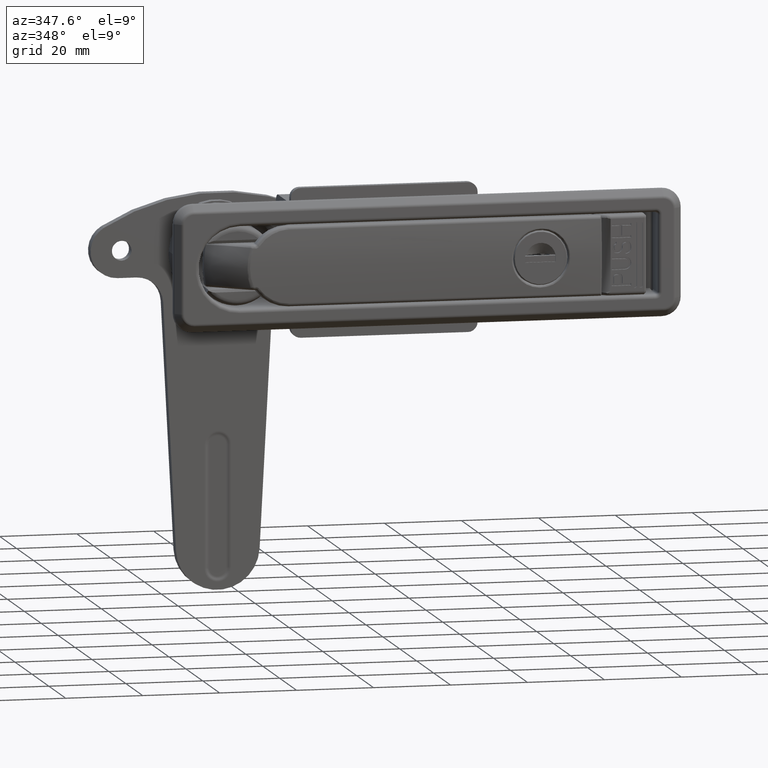
[diagram: clean part render]
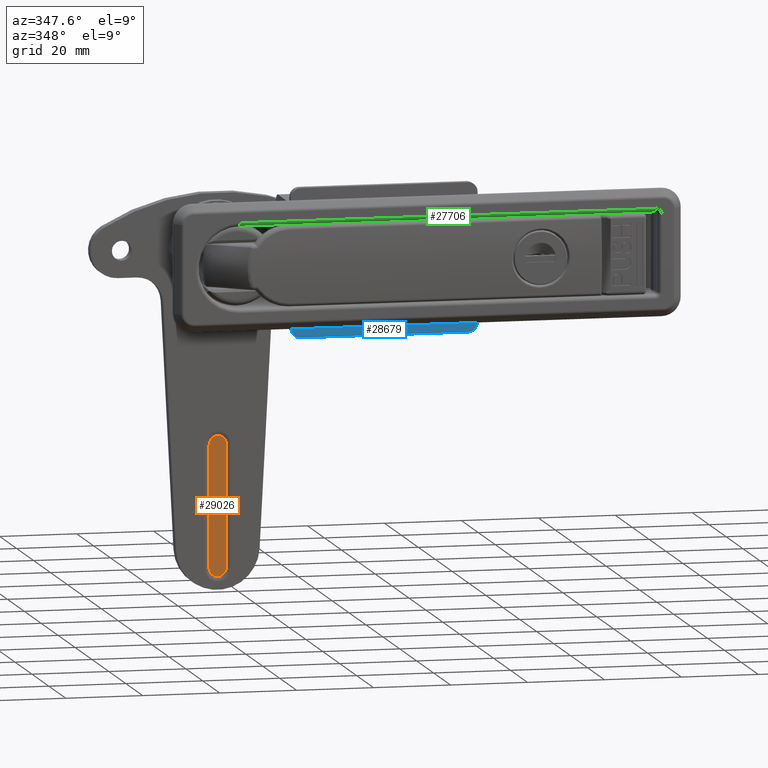
[diagram: same view with three faces highlighted in distinct colors, each labeled with its STEP entity id]
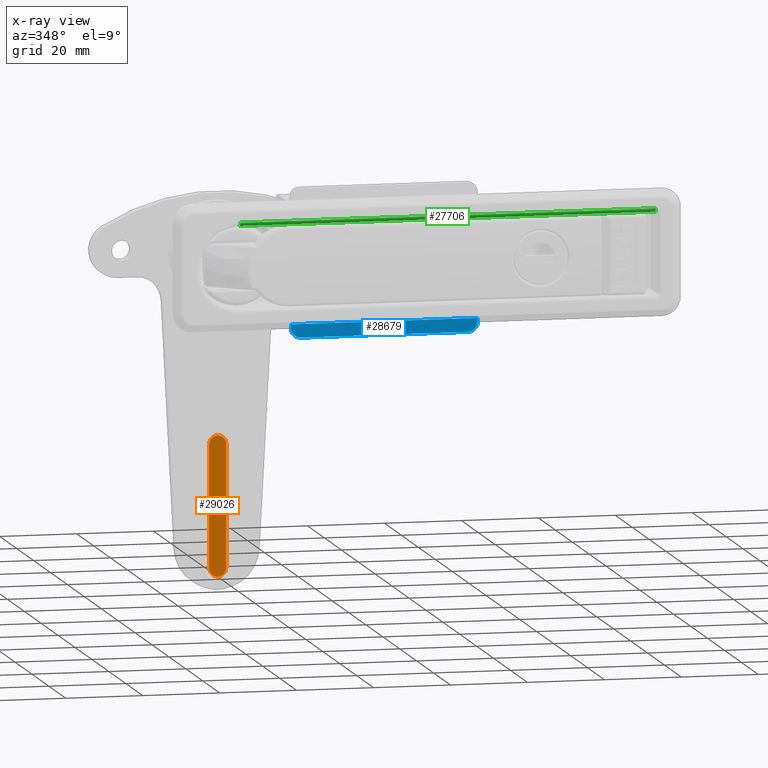
[diagram: x-ray of the same camera — body ghosted, the three highlighted faces saturated]
A machine part, auxiliary view with three faces highlighted in distinct colors.
The next image is the same camera in x-ray (body ghosted, the three faces saturated) — at least one of them is partly hidden behind the body in this view.
Their STEP definitions:

[orange] entity #29026 — the highlighted planar face has unit normal (0, -1, -0).
#2333=CIRCLE('',#31944,2.22278018902847);
#2339=CIRCLE('',#31952,2.22278018902847);
#4628=FACE_OUTER_BOUND('',#6511,.T.);
#6511=EDGE_LOOP('',(#26234,#26235,#26236,#26237));
#9281=LINE('',#101782,#11326);
#9283=LINE('',#101791,#11328);
#11326=VECTOR('',#39656,31.8);
#11328=VECTOR('',#39668,31.8);
#13915=VERTEX_POINT('',#101770);
#13916=VERTEX_POINT('',#101772);
#13918=VERTEX_POINT('',#101778);
#13920=VERTEX_POINT('',#101784);
#18045=EDGE_CURVE('',#13915,#13916,#2333,.T.);
#18050=EDGE_CURVE('',#13916,#13918,#9281,.T.);
#18053=EDGE_CURVE('',#13918,#13920,#2339,.T.);
#18055=EDGE_CURVE('',#13920,#13915,#9283,.T.);
#26234=ORIENTED_EDGE('',*,*,#18045,.F.);
#26235=ORIENTED_EDGE('',*,*,#18055,.F.);
#26236=ORIENTED_EDGE('',*,*,#18053,.F.);
#26237=ORIENTED_EDGE('',*,*,#18050,.F.);
#27331=PLANE('',#31960);
#29026=ADVANCED_FACE('',(#4628),#27331,.T.);
#31944=AXIS2_PLACEMENT_3D('',#101773,#39645,#39646);
#31952=AXIS2_PLACEMENT_3D('',#101788,#39663,#39664);
#31960=AXIS2_PLACEMENT_3D('',#101802,#39682,#39683);
#39645=DIRECTION('center_axis',(0.,0.,-1.));
#39646=DIRECTION('ref_axis',(1.,0.,0.));
#39656=DIRECTION('',(-1.,0.,0.));
#39663=DIRECTION('center_axis',(0.,0.,-1.));
#39664=DIRECTION('ref_axis',(-1.,0.,0.));
#39668=DIRECTION('',(1.,0.,0.));
#39682=DIRECTION('center_axis',(0.,0.,1.));
#39683=DIRECTION('ref_axis',(1.,0.,0.));
#101770=CARTESIAN_POINT('',(-50.6,28.3227801890285,2.8));
#101772=CARTESIAN_POINT('',(-50.6,23.8772198109715,2.8));
#101773=CARTESIAN_POINT('Origin',(-50.6,26.1,2.8));
#101778=CARTESIAN_POINT('',(-82.4,23.8772198109715,2.8));
#101782=CARTESIAN_POINT('',(-79.7599961758363,23.8772198109715,2.8));
#101784=CARTESIAN_POINT('',(-82.4,28.3227801890285,2.8));
#101788=CARTESIAN_POINT('Origin',(-82.4,26.1,2.8));
#101791=CARTESIAN_POINT('',(-63.8599961758363,28.3227801890285,2.8));
#101802=CARTESIAN_POINT('Origin',(-77.1199923516726,26.1,2.8));

[blue] entity #28679 — the highlighted planar face has unit normal (0, -1, 0).
#1959=CIRCLE('',#31216,2.5);
#1961=CIRCLE('',#31220,2.5);
#4281=FACE_OUTER_BOUND('',#6118,.T.);
#6118=EDGE_LOOP('',(#24580,#24581,#24582,#24583,#24584,#24585));
#8949=LINE('',#92140,#10994);
#8956=LINE('',#92162,#11001);
#8957=LINE('',#92164,#11002);
#8958=LINE('',#92165,#11003);
#10994=VECTOR('',#37854,0.999999999999999);
#11001=VECTOR('',#37877,43.5);
#11002=VECTOR('',#37878,48.5);
#11003=VECTOR('',#37879,0.999999999999999);
#13361=VERTEX_POINT('',#92101);
#13380=VERTEX_POINT('',#92138);
#13382=VERTEX_POINT('',#92144);
#13386=VERTEX_POINT('',#92156);
#13387=VERTEX_POINT('',#92157);
#13388=VERTEX_POINT('',#92163);
#17221=EDGE_CURVE('',#13361,#13380,#8949,.T.);
#17223=EDGE_CURVE('',#13382,#13361,#1959,.T.);
#17229=EDGE_CURVE('',#13386,#13387,#1961,.T.);
#17232=EDGE_CURVE('',#13382,#13387,#8956,.T.);
#17233=EDGE_CURVE('',#13388,#13380,#8957,.T.);
#17234=EDGE_CURVE('',#13386,#13388,#8958,.T.);
#24580=ORIENTED_EDGE('',*,*,#17229,.T.);
#24581=ORIENTED_EDGE('',*,*,#17232,.F.);
#24582=ORIENTED_EDGE('',*,*,#17223,.T.);
#24583=ORIENTED_EDGE('',*,*,#17221,.T.);
#24584=ORIENTED_EDGE('',*,*,#17233,.F.);
#24585=ORIENTED_EDGE('',*,*,#17234,.F.);
#27186=PLANE('',#31221);
#28679=ADVANCED_FACE('',(#4281),#27186,.T.);
#31216=AXIS2_PLACEMENT_3D('',#92145,#37859,#37860);
#31220=AXIS2_PLACEMENT_3D('',#92158,#37871,#37872);
#31221=AXIS2_PLACEMENT_3D('',#92161,#37875,#37876);
#37854=DIRECTION('',(1.,0.,0.));
#37859=DIRECTION('center_axis',(0.,0.,1.));
#37860=DIRECTION('ref_axis',(-1.,0.,0.));
#37871=DIRECTION('center_axis',(0.,0.,1.));
#37872=DIRECTION('ref_axis',(0.,1.,0.));
#37875=DIRECTION('center_axis',(0.,0.,1.));
#37876=DIRECTION('ref_axis',(1.,0.,0.));
#37877=DIRECTION('',(0.,1.,0.));
#37878=DIRECTION('',(0.,-1.,0.));
#37879=DIRECTION('',(1.,0.,0.));
#92101=CARTESIAN_POINT('',(-16.75,-24.25,0.));
#92138=CARTESIAN_POINT('',(-15.75,-24.25,0.));
#92140=CARTESIAN_POINT('',(-16.75,-24.25,0.));
#92144=CARTESIAN_POINT('',(-19.25,-21.75,0.));
#92145=CARTESIAN_POINT('Origin',(-16.75,-21.75,0.));
#92156=CARTESIAN_POINT('',(-16.75,24.25,0.));
#92157=CARTESIAN_POINT('',(-19.25,21.75,0.));
#92158=CARTESIAN_POINT('Origin',(-16.75,21.75,0.));
#92161=CARTESIAN_POINT('Origin',(-19.25,-24.25,0.));
#92162=CARTESIAN_POINT('',(-19.25,-21.75,0.));
#92163=CARTESIAN_POINT('',(-15.75,24.25,0.));
#92164=CARTESIAN_POINT('',(-15.75,24.25,0.));
#92165=CARTESIAN_POINT('',(-16.75,24.25,0.));

[green] entity #27706 — the highlighted cylindrical surface (edge-blend (fillet) strip) has radius 1 mm, axis along (-1, 0, 0).
#1303=CIRCLE('',#29728,1.);
#1320=CIRCLE('',#29756,1.);
#2544=CYLINDRICAL_SURFACE('',#29757,1.);
#3308=FACE_OUTER_BOUND('',#5085,.T.);
#5085=EDGE_LOOP('',(#19735,#19736,#19737,#19738));
#7499=LINE('',#44430,#9544);
#7629=LINE('',#49443,#9674);
#9544=VECTOR('',#32952,107.99999999958);
#9674=VECTOR('',#33622,107.99999999998);
#11713=VERTEX_POINT('',#44427);
#11714=VERTEX_POINT('',#44429);
#11874=VERTEX_POINT('',#47860);
#11894=VERTEX_POINT('',#49439);
#14489=EDGE_CURVE('',#11713,#11714,#7499,.T.);
#14788=EDGE_CURVE('',#11714,#11874,#1303,.T.);
#14826=EDGE_CURVE('',#11713,#11894,#1320,.T.);
#14827=EDGE_CURVE('',#11894,#11874,#7629,.T.);
#19735=ORIENTED_EDGE('',*,*,#14489,.F.);
#19736=ORIENTED_EDGE('',*,*,#14826,.T.);
#19737=ORIENTED_EDGE('',*,*,#14827,.T.);
#19738=ORIENTED_EDGE('',*,*,#14788,.F.);
#27706=ADVANCED_FACE('',(#3308),#2544,.T.);
#29728=AXIS2_PLACEMENT_3D('',#47861,#33553,#33554);
#29756=AXIS2_PLACEMENT_3D('',#49441,#33618,#33619);
#29757=AXIS2_PLACEMENT_3D('',#49442,#33620,#33621);
#32952=DIRECTION('',(-1.,0.,0.));
#33553=DIRECTION('center_axis',(-1.,0.,0.));
#33554=DIRECTION('ref_axis',(0.,-0.00610861439067974,-0.999981342241057));
#33618=DIRECTION('center_axis',(-1.,0.,0.));
#33619=DIRECTION('ref_axis',(0.,-0.00610861439067974,-0.999981342241057));
#33620=DIRECTION('center_axis',(-1.,0.,0.));
#33621=DIRECTION('ref_axis',(0.,-0.00610861439067974,-0.999981342241057));
#33622=DIRECTION('',(-1.,0.,-2.24544662699E-13));
#44427=CARTESIAN_POINT('',(59.,-2.256108614391,10.61763033691));
#44429=CARTESIAN_POINT('',(-48.99999999958,-2.256108614391,10.61763033691));
#44430=CARTESIAN_POINT('',(59.00000000002,-2.256108614391,10.61763033691));
#47860=CARTESIAN_POINT('',(-48.99999999998,-3.25,11.61761167912));
#47861=CARTESIAN_POINT('Origin',(-49.,-2.25,11.61761167915));
#49439=CARTESIAN_POINT('',(59.,-3.25,11.61761167915));
#49441=CARTESIAN_POINT('Origin',(59.,-2.25,11.61761167915));
#49442=CARTESIAN_POINT('Origin',(59.2060473779,-2.25,11.61761167915));
#49443=CARTESIAN_POINT('',(59.00000000003,-3.25,11.61761167915));